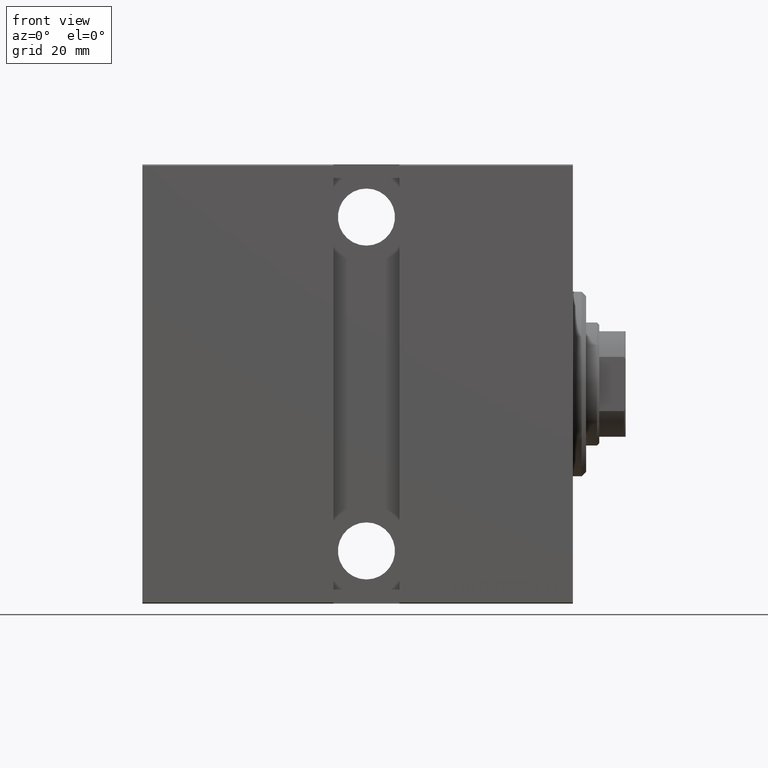
[diagram: clean part render]
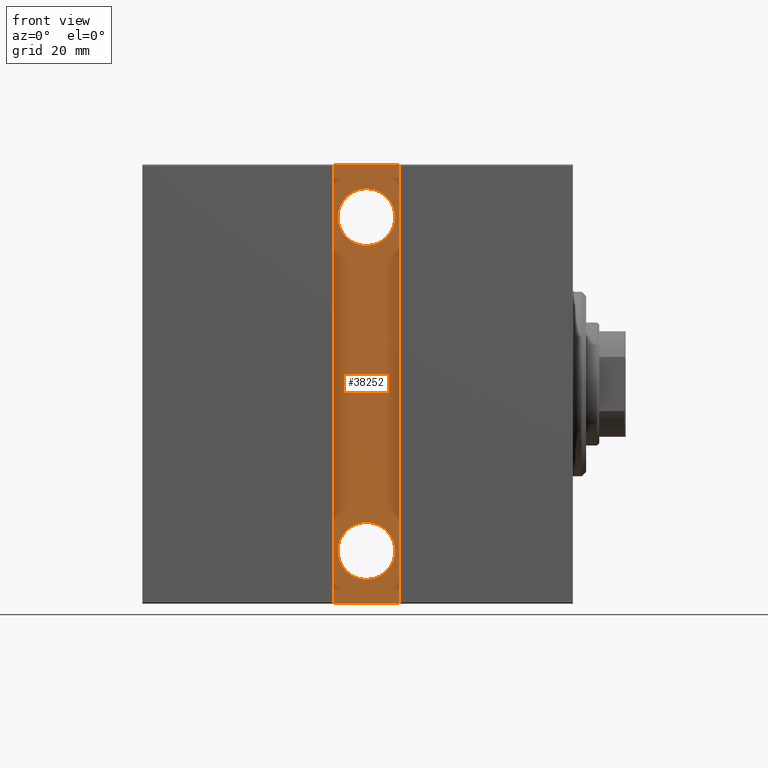
[diagram: same view with one face highlighted and labeled with its STEP entity id]
A machine part, front view. The second image highlights one B-rep face of the part: STEP entity #38252.
In plain terms, the highlighted planar face has unit normal (0, 1, 0).
Its self-contained STEP definition (entity closure, byte-faithful):
#666 = VERTEX_POINT ( 'NONE', #2084 ) ;
#845 = DIRECTION ( 'NONE',  ( -1.000000000000000000, 0.000000000000000000, 0.000000000000000000 ) ) ;
#1349 = LINE ( 'NONE', #14591, #39277 ) ;
#1849 = CARTESIAN_POINT ( 'NONE',  ( 54.50000000000001421, 32.50000000000000000, 49.99999999999999289 ) ) ;
#2084 = CARTESIAN_POINT ( 'NONE',  ( 39.50000000000000711, 32.50000000000000000, 49.99999999999999289 ) ) ;
#2095 = DIRECTION ( 'NONE',  ( 0.000000000000000000, 0.000000000000000000, -1.000000000000000000 ) ) ;
#2494 = DIRECTION ( 'NONE',  ( 0.000000000000000000, -1.000000000000000000, 0.000000000000000000 ) ) ;
#2537 = FACE_BOUND ( 'NONE', #21646, .T. ) ;
#3950 = CIRCLE ( 'NONE', #33789, 6.499999999999999112 ) ;
#4136 = ORIENTED_EDGE ( 'NONE', *, *, #39321, .T. ) ;
#4786 = FACE_BOUND ( 'NONE', #30225, .T. ) ;
#5001 = DIRECTION ( 'NONE',  ( 0.000000000000000000, -1.000000000000000000, 0.000000000000000000 ) ) ;
#5228 = ORIENTED_EDGE ( 'NONE', *, *, #19519, .T. ) ;
#6959 = VERTEX_POINT ( 'NONE', #32555 ) ;
#7273 = VERTEX_POINT ( 'NONE', #8512 ) ;
#8512 = CARTESIAN_POINT ( 'NONE',  ( 54.50000000000001421, 32.50000000000000711, -50.00000000000000711 ) ) ;
#8893 = CARTESIAN_POINT ( 'NONE',  ( 54.50000000000001421, 32.50000000000000000, 49.99999999999999289 ) ) ;
#9420 = AXIS2_PLACEMENT_3D ( 'NONE', #42489, #5001, #31495 ) ;
#9819 = CARTESIAN_POINT ( 'NONE',  ( 47.00000000000002132, 32.50000000000000000, -31.50000000000000000 ) ) ;
#10901 = DIRECTION ( 'NONE',  ( 6.938893903907228378E-17, 0.000000000000000000, 1.000000000000000000 ) ) ;
#11516 = FACE_OUTER_BOUND ( 'NONE', #34163, .T. ) ;
#12271 = DIRECTION ( 'NONE',  ( 0.000000000000000000, 0.000000000000000000, -1.000000000000000000 ) ) ;
#12383 = CIRCLE ( 'NONE', #40139, 6.499999999999999112 ) ;
#13272 = VERTEX_POINT ( 'NONE', #9819 ) ;
#13333 = CARTESIAN_POINT ( 'NONE',  ( 47.00000000000002132, 32.50000000000000000, 31.50000000000000000 ) ) ;
#13524 = CARTESIAN_POINT ( 'NONE',  ( 39.50000000000000000, 32.50000000000000000, -50.00000000000000711 ) ) ;
#13834 = CARTESIAN_POINT ( 'NONE',  ( 47.00000000000002132, 32.50000000000000000, 44.50000000000000000 ) ) ;
#14591 = CARTESIAN_POINT ( 'NONE',  ( 39.50000000000000000, 32.50000000000000000, -50.00000000000000711 ) ) ;
#15301 = LINE ( 'NONE', #1849, #39934 ) ;
#15724 = VERTEX_POINT ( 'NONE', #13834 ) ;
#17385 = LINE ( 'NONE', #40837, #40650 ) ;
#17998 = ORIENTED_EDGE ( 'NONE', *, *, #22194, .T. ) ;
#18149 = VERTEX_POINT ( 'NONE', #13333 ) ;
#18772 = DIRECTION ( 'NONE',  ( 1.000000000000000000, -0.000000000000000000, -0.000000000000000000 ) ) ;
#19337 = CARTESIAN_POINT ( 'NONE',  ( 47.00000000000002132, 32.50000000000000000, -38.00000000000000000 ) ) ;
#19519 = EDGE_CURVE ( 'NONE', #6959, #13272, #20522, .T. ) ;
#20522 = CIRCLE ( 'NONE', #42669, 6.499999999999999112 ) ;
#21646 = EDGE_LOOP ( 'NONE', ( #35759, #5228 ) ) ;
#22194 = EDGE_CURVE ( 'NONE', #7273, #29891, #23657, .T. ) ;
#23551 = DIRECTION ( 'NONE',  ( 0.000000000000000000, -1.000000000000000000, 0.000000000000000000 ) ) ;
#23657 = LINE ( 'NONE', #24098, #40684 ) ;
#24098 = CARTESIAN_POINT ( 'NONE',  ( 54.50000000000000000, 32.50000000000000000, -50.00000000000000711 ) ) ;
#25060 = EDGE_CURVE ( 'NONE', #27404, #7273, #17385, .T. ) ;
#25132 = CARTESIAN_POINT ( 'NONE',  ( 47.00000000000002132, 32.50000000000000000, 38.00000000000000000 ) ) ;
#25444 = DIRECTION ( 'NONE',  ( 0.000000000000000000, -1.000000000000000000, 0.000000000000000000 ) ) ;
#26705 = ORIENTED_EDGE ( 'NONE', *, *, #25060, .T. ) ;
#26819 = CARTESIAN_POINT ( 'NONE',  ( 47.00000000000002132, 32.50000000000000000, 38.00000000000000000 ) ) ;
#27404 = VERTEX_POINT ( 'NONE', #8893 ) ;
#28377 = EDGE_CURVE ( 'NONE', #15724, #18149, #3950, .T. ) ;
#29891 = VERTEX_POINT ( 'NONE', #13524 ) ;
#30197 = DIRECTION ( 'NONE',  ( -1.387778780781445676E-16, -0.000000000000000000, -1.000000000000000000 ) ) ;
#30225 = EDGE_LOOP ( 'NONE', ( #36084, #35551 ) ) ;
#31008 = CIRCLE ( 'NONE', #38599, 6.499999999999999112 ) ;
#31495 = DIRECTION ( 'NONE',  ( 0.000000000000000000, -0.000000000000000000, -1.000000000000000000 ) ) ;
#32137 = EDGE_CURVE ( 'NONE', #18149, #15724, #12383, .T. ) ;
#32555 = CARTESIAN_POINT ( 'NONE',  ( 47.00000000000002132, 32.50000000000000000, -44.50000000000000000 ) ) ;
#32583 = DIRECTION ( 'NONE',  ( 0.000000000000000000, 0.000000000000000000, -1.000000000000000000 ) ) ;
#33535 = DIRECTION ( 'NONE',  ( 0.000000000000000000, 0.000000000000000000, -1.000000000000000000 ) ) ;
#33789 = AXIS2_PLACEMENT_3D ( 'NONE', #26819, #23551, #33535 ) ;
#34163 = EDGE_LOOP ( 'NONE', ( #4136, #40070, #26705, #17998 ) ) ;
#35551 = ORIENTED_EDGE ( 'NONE', *, *, #32137, .T. ) ;
#35759 = ORIENTED_EDGE ( 'NONE', *, *, #41059, .T. ) ;
#36084 = ORIENTED_EDGE ( 'NONE', *, *, #28377, .T. ) ;
#37877 = EDGE_CURVE ( 'NONE', #666, #27404, #15301, .T. ) ;
#38016 = PLANE ( 'NONE',  #9420 ) ;
#38252 = ADVANCED_FACE ( 'NONE', ( #4786, #2537, #11516 ), #38016, .F. ) ;
#38599 = AXIS2_PLACEMENT_3D ( 'NONE', #19337, #25444, #32583 ) ;
#39277 = VECTOR ( 'NONE', #10901, 1000.000000000000000 ) ;
#39321 = EDGE_CURVE ( 'NONE', #29891, #666, #1349, .T. ) ;
#39934 = VECTOR ( 'NONE', #18772, 1000.000000000000000 ) ;
#40070 = ORIENTED_EDGE ( 'NONE', *, *, #37877, .T. ) ;
#40139 = AXIS2_PLACEMENT_3D ( 'NONE', #25132, #41832, #2095 ) ;
#40650 = VECTOR ( 'NONE', #30197, 1000.000000000000000 ) ;
#40684 = VECTOR ( 'NONE', #845, 1000.000000000000000 ) ;
#40837 = CARTESIAN_POINT ( 'NONE',  ( 54.50000000000000000, 32.50000000000000000, -50.00000000000000711 ) ) ;
#41059 = EDGE_CURVE ( 'NONE', #13272, #6959, #31008, .T. ) ;
#41832 = DIRECTION ( 'NONE',  ( 0.000000000000000000, -1.000000000000000000, 0.000000000000000000 ) ) ;
#42024 = CARTESIAN_POINT ( 'NONE',  ( 47.00000000000002132, 32.50000000000000000, -38.00000000000000000 ) ) ;
#42489 = CARTESIAN_POINT ( 'NONE',  ( 0.000000000000000000, 32.50000000000000000, 0.000000000000000000 ) ) ;
#42669 = AXIS2_PLACEMENT_3D ( 'NONE', #42024, #2494, #12271 ) ;